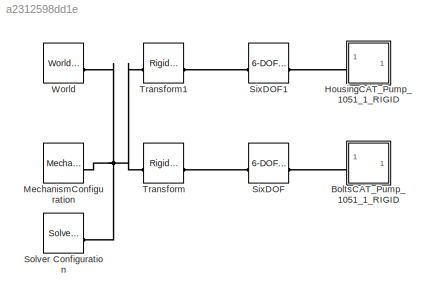
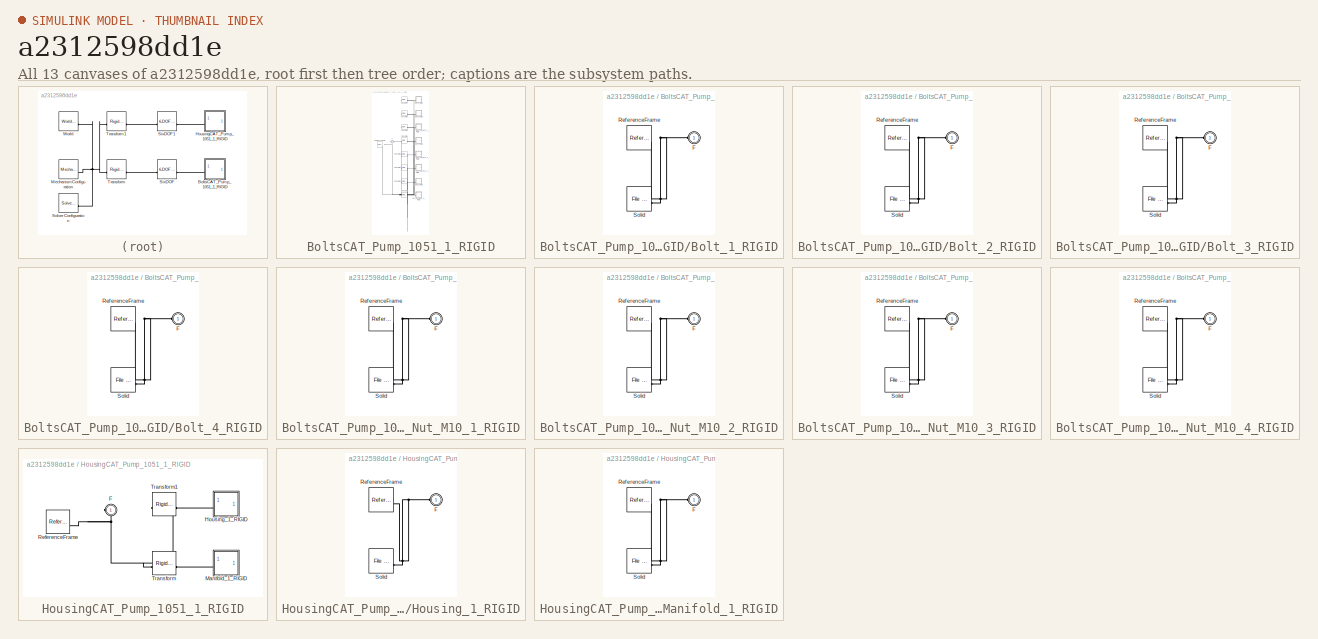
[diagram: thumbnail index - all 13 canvases of the model, root first then tree order]
MODEL slx_a2312598dd1e
KIND model
CONFIG AbsTol = auto
CONFIG EnableMultiTasking = off
CONFIG FixedStep = auto
CONFIG MaxStep = auto
CONFIG MinStep = auto
CONFIG RelTol = 1e-3
CONFIG SampleTimeConstraint = Unconstrained
CONFIG SolverName = VariableStepAuto
CONFIG StartTime = 0.0
CONFIG StopTime = 10.0
WORKSPACE source: external: MATLAB File  (data not in archive)
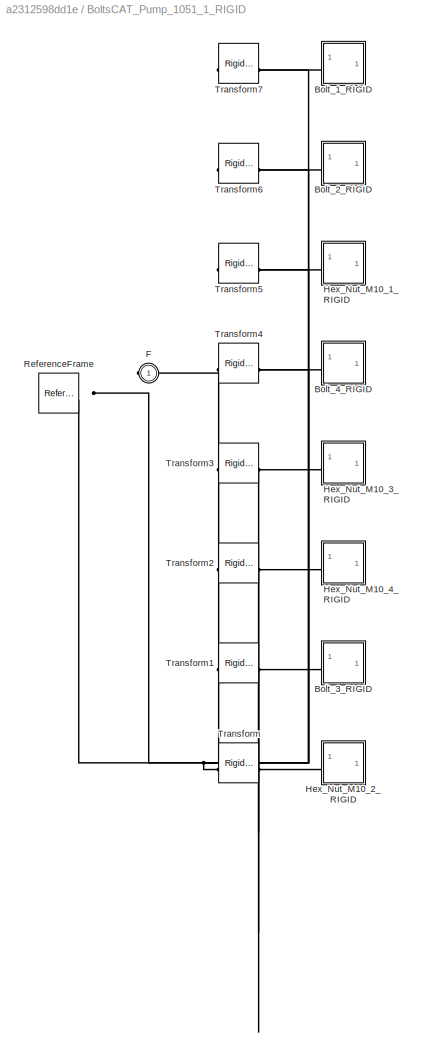
BLOCK [SubSystem] BoltsCAT_Pump_1051_1_RIGID
BLOCK [SubSystem] BoltsCAT_Pump_1051_1_RIGID/Bolt_1_RIGID
BLOCK [PMIOPort] BoltsCAT_Pump_1051_1_RIGID/Bolt_1_RIGID/F
  Side = Left
BLOCK [Reference] BoltsCAT_Pump_1051_1_RIGID/Bolt_1_RIGID/ReferenceFrame  REF=sm_lib/Frames and
Transforms/Reference
Frame
  SourceBlock = sm_lib/Frames and\nTransforms/Reference\nFrame
  SourceType = Reference\nFrame
BLOCK [Reference] BoltsCAT_Pump_1051_1_RIGID/Bolt_1_RIGID/Solid  REF=sm_lib/Body Elements/File Solid
  SourceBlock = sm_lib/Body Elements/File Solid
  SourceType = File Solid
BLOCK [SubSystem] BoltsCAT_Pump_1051_1_RIGID/Bolt_2_RIGID
BLOCK [PMIOPort] BoltsCAT_Pump_1051_1_RIGID/Bolt_2_RIGID/F
  Side = Left
BLOCK [Reference] BoltsCAT_Pump_1051_1_RIGID/Bolt_2_RIGID/ReferenceFrame  REF=sm_lib/Frames and
Transforms/Reference
Frame
  SourceBlock = sm_lib/Frames and\nTransforms/Reference\nFrame
  SourceType = Reference\nFrame
BLOCK [Reference] BoltsCAT_Pump_1051_1_RIGID/Bolt_2_RIGID/Solid  REF=sm_lib/Body Elements/File Solid
  SourceBlock = sm_lib/Body Elements/File Solid
  SourceType = File Solid
BLOCK [SubSystem] BoltsCAT_Pump_1051_1_RIGID/Bolt_3_RIGID
BLOCK [PMIOPort] BoltsCAT_Pump_1051_1_RIGID/Bolt_3_RIGID/F
  Side = Left
BLOCK [Reference] BoltsCAT_Pump_1051_1_RIGID/Bolt_3_RIGID/ReferenceFrame  REF=sm_lib/Frames and
Transforms/Reference
Frame
  SourceBlock = sm_lib/Frames and\nTransforms/Reference\nFrame
  SourceType = Reference\nFrame
BLOCK [Reference] BoltsCAT_Pump_1051_1_RIGID/Bolt_3_RIGID/Solid  REF=sm_lib/Body Elements/File Solid
  SourceBlock = sm_lib/Body Elements/File Solid
  SourceType = File Solid
BLOCK [SubSystem] BoltsCAT_Pump_1051_1_RIGID/Bolt_4_RIGID
BLOCK [PMIOPort] BoltsCAT_Pump_1051_1_RIGID/Bolt_4_RIGID/F
  Side = Left
BLOCK [Reference] BoltsCAT_Pump_1051_1_RIGID/Bolt_4_RIGID/ReferenceFrame  REF=sm_lib/Frames and
Transforms/Reference
Frame
  SourceBlock = sm_lib/Frames and\nTransforms/Reference\nFrame
  SourceType = Reference\nFrame
BLOCK [Reference] BoltsCAT_Pump_1051_1_RIGID/Bolt_4_RIGID/Solid  REF=sm_lib/Body Elements/File Solid
  SourceBlock = sm_lib/Body Elements/File Solid
  SourceType = File Solid
BLOCK [PMIOPort] BoltsCAT_Pump_1051_1_RIGID/F
  Side = Left
BLOCK [SubSystem] BoltsCAT_Pump_1051_1_RIGID/Hex_Nut_M10_1_RIGID
BLOCK [PMIOPort] BoltsCAT_Pump_1051_1_RIGID/Hex_Nut_M10_1_RIGID/F
  Side = Left
BLOCK [Reference] BoltsCAT_Pump_1051_1_RIGID/Hex_Nut_M10_1_RIGID/ReferenceFrame  REF=sm_lib/Frames and
Transforms/Reference
Frame
  SourceBlock = sm_lib/Frames and\nTransforms/Reference\nFrame
  SourceType = Reference\nFrame
BLOCK [Reference] BoltsCAT_Pump_1051_1_RIGID/Hex_Nut_M10_1_RIGID/Solid  REF=sm_lib/Body Elements/File Solid
  SourceBlock = sm_lib/Body Elements/File Solid
  SourceType = File Solid
BLOCK [SubSystem] BoltsCAT_Pump_1051_1_RIGID/Hex_Nut_M10_2_RIGID
BLOCK [PMIOPort] BoltsCAT_Pump_1051_1_RIGID/Hex_Nut_M10_2_RIGID/F
  Side = Left
BLOCK [Reference] BoltsCAT_Pump_1051_1_RIGID/Hex_Nut_M10_2_RIGID/ReferenceFrame  REF=sm_lib/Frames and
Transforms/Reference
Frame
  SourceBlock = sm_lib/Frames and\nTransforms/Reference\nFrame
  SourceType = Reference\nFrame
BLOCK [Reference] BoltsCAT_Pump_1051_1_RIGID/Hex_Nut_M10_2_RIGID/Solid  REF=sm_lib/Body Elements/File Solid
  SourceBlock = sm_lib/Body Elements/File Solid
  SourceType = File Solid
BLOCK [SubSystem] BoltsCAT_Pump_1051_1_RIGID/Hex_Nut_M10_3_RIGID
BLOCK [PMIOPort] BoltsCAT_Pump_1051_1_RIGID/Hex_Nut_M10_3_RIGID/F
  Side = Left
BLOCK [Reference] BoltsCAT_Pump_1051_1_RIGID/Hex_Nut_M10_3_RIGID/ReferenceFrame  REF=sm_lib/Frames and
Transforms/Reference
Frame
  SourceBlock = sm_lib/Frames and\nTransforms/Reference\nFrame
  SourceType = Reference\nFrame
BLOCK [Reference] BoltsCAT_Pump_1051_1_RIGID/Hex_Nut_M10_3_RIGID/Solid  REF=sm_lib/Body Elements/File Solid
  SourceBlock = sm_lib/Body Elements/File Solid
  SourceType = File Solid
BLOCK [SubSystem] BoltsCAT_Pump_1051_1_RIGID/Hex_Nut_M10_4_RIGID
BLOCK [PMIOPort] BoltsCAT_Pump_1051_1_RIGID/Hex_Nut_M10_4_RIGID/F
  Side = Left
BLOCK [Reference] BoltsCAT_Pump_1051_1_RIGID/Hex_Nut_M10_4_RIGID/ReferenceFrame  REF=sm_lib/Frames and
Transforms/Reference
Frame
  SourceBlock = sm_lib/Frames and\nTransforms/Reference\nFrame
  SourceType = Reference\nFrame
BLOCK [Reference] BoltsCAT_Pump_1051_1_RIGID/Hex_Nut_M10_4_RIGID/Solid  REF=sm_lib/Body Elements/File Solid
  SourceBlock = sm_lib/Body Elements/File Solid
  SourceType = File Solid
BLOCK [Reference] BoltsCAT_Pump_1051_1_RIGID/ReferenceFrame  REF=sm_lib/Frames and
Transforms/Reference
Frame
  SourceBlock = sm_lib/Frames and\nTransforms/Reference\nFrame
  SourceType = Reference\nFrame
BLOCK [Reference] BoltsCAT_Pump_1051_1_RIGID/Transform  REF=sm_lib/Frames and
Transforms/Rigid
Transform
  SourceBlock = sm_lib/Frames and\nTransforms/Rigid\nTransform
  SourceType = Rigid\nTransform
BLOCK [Reference] BoltsCAT_Pump_1051_1_RIGID/Transform1  REF=sm_lib/Frames and
Transforms/Rigid
Transform
  SourceBlock = sm_lib/Frames and\nTransforms/Rigid\nTransform
  SourceType = Rigid\nTransform
BLOCK [Reference] BoltsCAT_Pump_1051_1_RIGID/Transform2  REF=sm_lib/Frames and
Transforms/Rigid
Transform
  SourceBlock = sm_lib/Frames and\nTransforms/Rigid\nTransform
  SourceType = Rigid\nTransform
BLOCK [Reference] BoltsCAT_Pump_1051_1_RIGID/Transform3  REF=sm_lib/Frames and
Transforms/Rigid
Transform
  SourceBlock = sm_lib/Frames and\nTransforms/Rigid\nTransform
  SourceType = Rigid\nTransform
BLOCK [Reference] BoltsCAT_Pump_1051_1_RIGID/Transform4  REF=sm_lib/Frames and
Transforms/Rigid
Transform
  SourceBlock = sm_lib/Frames and\nTransforms/Rigid\nTransform
  SourceType = Rigid\nTransform
BLOCK [Reference] BoltsCAT_Pump_1051_1_RIGID/Transform5  REF=sm_lib/Frames and
Transforms/Rigid
Transform
  SourceBlock = sm_lib/Frames and\nTransforms/Rigid\nTransform
  SourceType = Rigid\nTransform
BLOCK [Reference] BoltsCAT_Pump_1051_1_RIGID/Transform6  REF=sm_lib/Frames and
Transforms/Rigid
Transform
  SourceBlock = sm_lib/Frames and\nTransforms/Rigid\nTransform
  SourceType = Rigid\nTransform
BLOCK [Reference] BoltsCAT_Pump_1051_1_RIGID/Transform7  REF=sm_lib/Frames and
Transforms/Rigid
Transform
  SourceBlock = sm_lib/Frames and\nTransforms/Rigid\nTransform
  SourceType = Rigid\nTransform
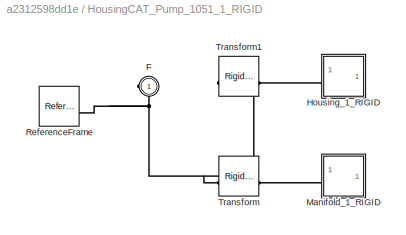
BLOCK [SubSystem] HousingCAT_Pump_1051_1_RIGID
BLOCK [PMIOPort] HousingCAT_Pump_1051_1_RIGID/F
  Side = Left
BLOCK [SubSystem] HousingCAT_Pump_1051_1_RIGID/Housing_1_RIGID
BLOCK [PMIOPort] HousingCAT_Pump_1051_1_RIGID/Housing_1_RIGID/F
  Side = Left
BLOCK [Reference] HousingCAT_Pump_1051_1_RIGID/Housing_1_RIGID/ReferenceFrame  REF=sm_lib/Frames and
Transforms/Reference
Frame
  SourceBlock = sm_lib/Frames and\nTransforms/Reference\nFrame
  SourceType = Reference\nFrame
BLOCK [Reference] HousingCAT_Pump_1051_1_RIGID/Housing_1_RIGID/Solid  REF=sm_lib/Body Elements/File Solid
  SourceBlock = sm_lib/Body Elements/File Solid
  SourceType = File Solid
BLOCK [SubSystem] HousingCAT_Pump_1051_1_RIGID/Manifold_1_RIGID
BLOCK [PMIOPort] HousingCAT_Pump_1051_1_RIGID/Manifold_1_RIGID/F
  Side = Left
BLOCK [Reference] HousingCAT_Pump_1051_1_RIGID/Manifold_1_RIGID/ReferenceFrame  REF=sm_lib/Frames and
Transforms/Reference
Frame
  SourceBlock = sm_lib/Frames and\nTransforms/Reference\nFrame
  SourceType = Reference\nFrame
BLOCK [Reference] HousingCAT_Pump_1051_1_RIGID/Manifold_1_RIGID/Solid  REF=sm_lib/Body Elements/File Solid
  SourceBlock = sm_lib/Body Elements/File Solid
  SourceType = File Solid
BLOCK [Reference] HousingCAT_Pump_1051_1_RIGID/ReferenceFrame  REF=sm_lib/Frames and
Transforms/Reference
Frame
  SourceBlock = sm_lib/Frames and\nTransforms/Reference\nFrame
  SourceType = Reference\nFrame
BLOCK [Reference] HousingCAT_Pump_1051_1_RIGID/Transform  REF=sm_lib/Frames and
Transforms/Rigid
Transform
  SourceBlock = sm_lib/Frames and\nTransforms/Rigid\nTransform
  SourceType = Rigid\nTransform
BLOCK [Reference] HousingCAT_Pump_1051_1_RIGID/Transform1  REF=sm_lib/Frames and
Transforms/Rigid
Transform
  SourceBlock = sm_lib/Frames and\nTransforms/Rigid\nTransform
  SourceType = Rigid\nTransform
BLOCK [Reference] MechanismConfiguration  REF=sm_lib/Utilities/Mechanism
Configuration
  SourceBlock = sm_lib/Utilities/Mechanism\nConfiguration
  SourceType = Mechanism\nConfiguration
BLOCK [Reference] SixDOF  REF=sm_lib/Joints/6-DOF Joint
  SourceBlock = sm_lib/Joints/6-DOF Joint
  SourceType = 6-DOF Joint
BLOCK [Reference] SixDOF1  REF=sm_lib/Joints/6-DOF Joint
  SourceBlock = sm_lib/Joints/6-DOF Joint
  SourceType = 6-DOF Joint
BLOCK [Reference] Solver Configuration  REF=nesl_utility/Solver
Configuration
  SourceBlock = nesl_utility/Solver\nConfiguration
  SourceType = Solver\nConfiguration
BLOCK [Reference] Transform  REF=sm_lib/Frames and
Transforms/Rigid
Transform
  SourceBlock = sm_lib/Frames and\nTransforms/Rigid\nTransform
  SourceType = Rigid\nTransform
BLOCK [Reference] Transform1  REF=sm_lib/Frames and
Transforms/Rigid
Transform
  SourceBlock = sm_lib/Frames and\nTransforms/Rigid\nTransform
  SourceType = Rigid\nTransform
BLOCK [Reference] World  REF=sm_lib/Frames and
Transforms/World Frame
  SourceBlock = sm_lib/Frames and\nTransforms/World Frame
  SourceType = World Frame
PNET net1: BoltsCAT_Pump_1051_1_RIGID/Bolt_1_RIGID/F:RConn1 -- BoltsCAT_Pump_1051_1_RIGID/Bolt_1_RIGID/ReferenceFrame:RConn1 -- BoltsCAT_Pump_1051_1_RIGID/Bolt_1_RIGID/Solid:RConn1
PLINE BoltsCAT_Pump_1051_1_RIGID/Bolt_1_RIGID:LConn1 -- BoltsCAT_Pump_1051_1_RIGID/Transform7:RConn1
PNET net2: BoltsCAT_Pump_1051_1_RIGID/Bolt_2_RIGID/F:RConn1 -- BoltsCAT_Pump_1051_1_RIGID/Bolt_2_RIGID/ReferenceFrame:RConn1 -- BoltsCAT_Pump_1051_1_RIGID/Bolt_2_RIGID/Solid:RConn1
PLINE BoltsCAT_Pump_1051_1_RIGID/Bolt_2_RIGID:LConn1 -- BoltsCAT_Pump_1051_1_RIGID/Transform6:RConn1
PNET net3: BoltsCAT_Pump_1051_1_RIGID/Bolt_3_RIGID/F:RConn1 -- BoltsCAT_Pump_1051_1_RIGID/Bolt_3_RIGID/ReferenceFrame:RConn1 -- BoltsCAT_Pump_1051_1_RIGID/Bolt_3_RIGID/Solid:RConn1
PLINE BoltsCAT_Pump_1051_1_RIGID/Bolt_3_RIGID:LConn1 -- BoltsCAT_Pump_1051_1_RIGID/Transform1:RConn1
PNET net4: BoltsCAT_Pump_1051_1_RIGID/Bolt_4_RIGID/F:RConn1 -- BoltsCAT_Pump_1051_1_RIGID/Bolt_4_RIGID/ReferenceFrame:RConn1 -- BoltsCAT_Pump_1051_1_RIGID/Bolt_4_RIGID/Solid:RConn1
PLINE BoltsCAT_Pump_1051_1_RIGID/Bolt_4_RIGID:LConn1 -- BoltsCAT_Pump_1051_1_RIGID/Transform4:RConn1
PNET net5: BoltsCAT_Pump_1051_1_RIGID/F:RConn1 -- BoltsCAT_Pump_1051_1_RIGID/ReferenceFrame:RConn1 -- BoltsCAT_Pump_1051_1_RIGID/Transform1:LConn1 -- BoltsCAT_Pump_1051_1_RIGID/Transform2:LConn1 -- BoltsCAT_Pump_1051_1_RIGID/Transform3:LConn1 -- BoltsCAT_Pump_1051_1_RIGID/Transform4:LConn1 -- BoltsCAT_Pump_1051_1_RIGID/Transform5:LConn1 -- BoltsCAT_Pump_1051_1_RIGID/Transform6:LConn1 -- BoltsCAT_Pump_1051_1_RIGID/Transform7:LConn1 -- BoltsCAT_Pump_1051_1_RIGID/Transform:LConn1
PNET net6: BoltsCAT_Pump_1051_1_RIGID/Hex_Nut_M10_1_RIGID/F:RConn1 -- BoltsCAT_Pump_1051_1_RIGID/Hex_Nut_M10_1_RIGID/ReferenceFrame:RConn1 -- BoltsCAT_Pump_1051_1_RIGID/Hex_Nut_M10_1_RIGID/Solid:RConn1
PLINE BoltsCAT_Pump_1051_1_RIGID/Hex_Nut_M10_1_RIGID:LConn1 -- BoltsCAT_Pump_1051_1_RIGID/Transform5:RConn1
PNET net7: BoltsCAT_Pump_1051_1_RIGID/Hex_Nut_M10_2_RIGID/F:RConn1 -- BoltsCAT_Pump_1051_1_RIGID/Hex_Nut_M10_2_RIGID/ReferenceFrame:RConn1 -- BoltsCAT_Pump_1051_1_RIGID/Hex_Nut_M10_2_RIGID/Solid:RConn1
PLINE BoltsCAT_Pump_1051_1_RIGID/Hex_Nut_M10_2_RIGID:LConn1 -- BoltsCAT_Pump_1051_1_RIGID/Transform:RConn1
PNET net8: BoltsCAT_Pump_1051_1_RIGID/Hex_Nut_M10_3_RIGID/F:RConn1 -- BoltsCAT_Pump_1051_1_RIGID/Hex_Nut_M10_3_RIGID/ReferenceFrame:RConn1 -- BoltsCAT_Pump_1051_1_RIGID/Hex_Nut_M10_3_RIGID/Solid:RConn1
PLINE BoltsCAT_Pump_1051_1_RIGID/Hex_Nut_M10_3_RIGID:LConn1 -- BoltsCAT_Pump_1051_1_RIGID/Transform3:RConn1
PNET net9: BoltsCAT_Pump_1051_1_RIGID/Hex_Nut_M10_4_RIGID/F:RConn1 -- BoltsCAT_Pump_1051_1_RIGID/Hex_Nut_M10_4_RIGID/ReferenceFrame:RConn1 -- BoltsCAT_Pump_1051_1_RIGID/Hex_Nut_M10_4_RIGID/Solid:RConn1
PLINE BoltsCAT_Pump_1051_1_RIGID/Hex_Nut_M10_4_RIGID:LConn1 -- BoltsCAT_Pump_1051_1_RIGID/Transform2:RConn1
PLINE BoltsCAT_Pump_1051_1_RIGID:LConn1 -- SixDOF:RConn1
PNET net10: HousingCAT_Pump_1051_1_RIGID/F:RConn1 -- HousingCAT_Pump_1051_1_RIGID/ReferenceFrame:RConn1 -- HousingCAT_Pump_1051_1_RIGID/Transform1:LConn1 -- HousingCAT_Pump_1051_1_RIGID/Transform:LConn1
PNET net11: HousingCAT_Pump_1051_1_RIGID/Housing_1_RIGID/F:RConn1 -- HousingCAT_Pump_1051_1_RIGID/Housing_1_RIGID/ReferenceFrame:RConn1 -- HousingCAT_Pump_1051_1_RIGID/Housing_1_RIGID/Solid:RConn1
PLINE HousingCAT_Pump_1051_1_RIGID/Housing_1_RIGID:LConn1 -- HousingCAT_Pump_1051_1_RIGID/Transform1:RConn1
PNET net12: HousingCAT_Pump_1051_1_RIGID/Manifold_1_RIGID/F:RConn1 -- HousingCAT_Pump_1051_1_RIGID/Manifold_1_RIGID/ReferenceFrame:RConn1 -- HousingCAT_Pump_1051_1_RIGID/Manifold_1_RIGID/Solid:RConn1
PLINE HousingCAT_Pump_1051_1_RIGID/Manifold_1_RIGID:LConn1 -- HousingCAT_Pump_1051_1_RIGID/Transform:RConn1
PLINE HousingCAT_Pump_1051_1_RIGID:LConn1 -- SixDOF1:RConn1
PNET net13: MechanismConfiguration:RConn1 -- Solver Configuration:RConn1 -- Transform1:LConn1 -- Transform:LConn1 -- World:RConn1
PLINE SixDOF1:LConn1 -- Transform1:RConn1
PLINE SixDOF:LConn1 -- Transform:RConn1
note: PNET lines group multi-terminal physical nets as a canonical sorted terminal list (undirected conserving connections); 2-terminal nets keep the pairwise PLINE form
